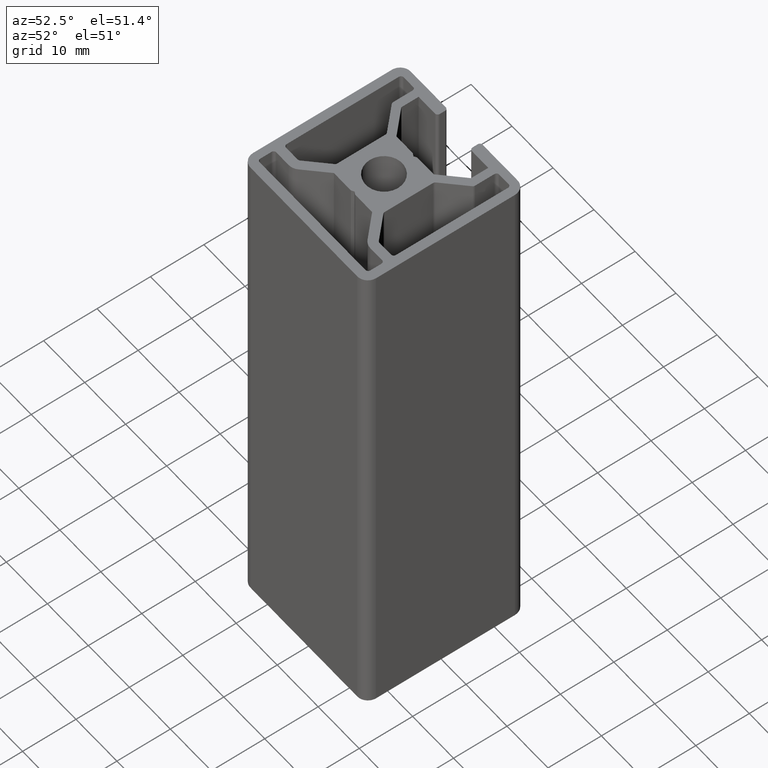
[diagram: clean part render]
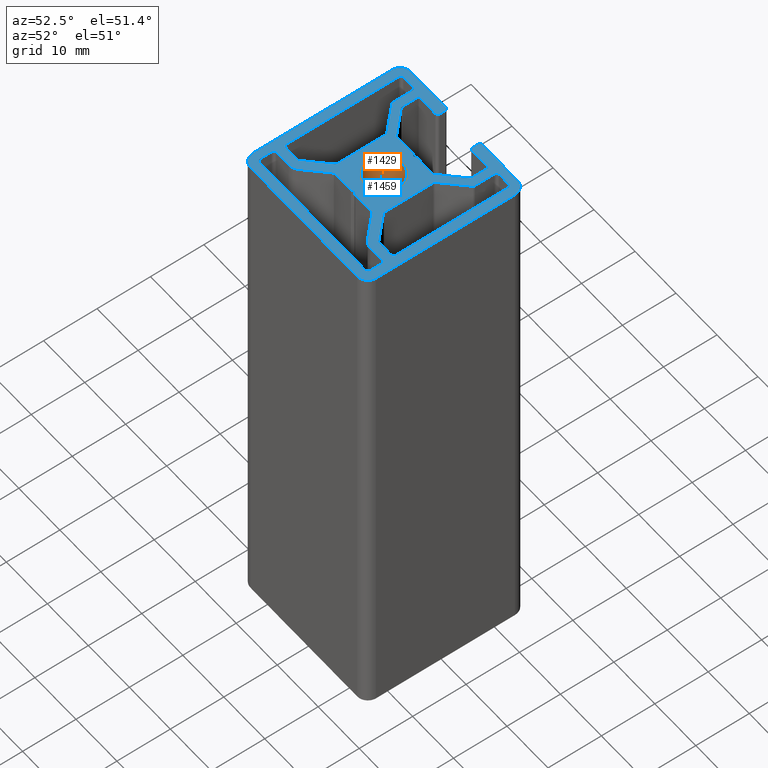
[diagram: same view with the hole feature highlighted: cylindrical wall and planar end face, labeled with their STEP entity ids]
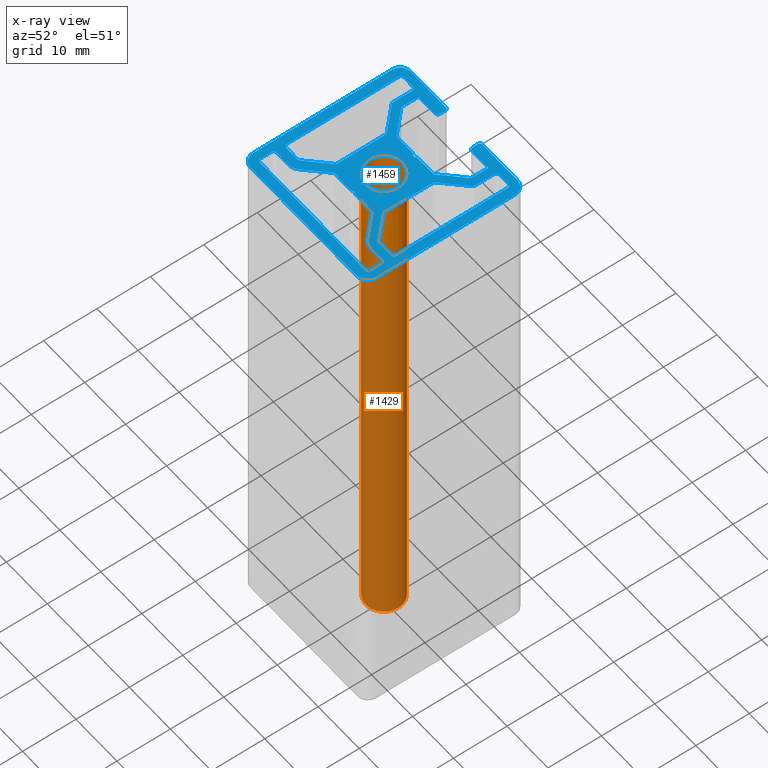
[diagram: x-ray of the same camera — body ghosted, the hole faces saturated]
A machine part, auxiliary view. The highlighted faces form one hole feature of diameter 6.8 mm: the cylindrical wall (entity #1429, orange) and its adjacent planar end face (entity #1459, blue) — they share a circular edge in the B-rep.
The next image is the same camera in x-ray (body ghosted, the hole faces saturated) — the bore reads through the body.
Wall:
#15=FACE_BOUND('',#218,.T.);
#44=CIRCLE('',#1525,3.39999999999997);
#45=CIRCLE('',#1526,3.39999999999997);
#92=CYLINDRICAL_SURFACE('',#1524,3.39999999999997);
#144=FACE_OUTER_BOUND('',#217,.T.);
#217=EDGE_LOOP('',(#1060));
#218=EDGE_LOOP('',(#1061));
#642=VERTEX_POINT('',#2223);
#643=VERTEX_POINT('',#2225);
#816=EDGE_CURVE('',#642,#642,#44,.T.);
#817=EDGE_CURVE('',#643,#643,#45,.T.);
#1060=ORIENTED_EDGE('',*,*,#816,.F.);
#1061=ORIENTED_EDGE('',*,*,#817,.F.);
#1429=ADVANCED_FACE('',(#144,#15),#92,.F.);
#1524=AXIS2_PLACEMENT_3D('',#2222,#1790,#1791);
#1525=AXIS2_PLACEMENT_3D('',#2224,#1792,#1793);
#1526=AXIS2_PLACEMENT_3D('',#2226,#1794,#1795);
#1790=DIRECTION('center_axis',(0.,0.,1.));
#1791=DIRECTION('ref_axis',(-1.,0.,0.));
#1792=DIRECTION('center_axis',(0.,0.,-1.));
#1793=DIRECTION('ref_axis',(-1.,0.,0.));
#1794=DIRECTION('center_axis',(0.,0.,1.));
#1795=DIRECTION('ref_axis',(-1.,0.,0.));
#2222=CARTESIAN_POINT('Origin',(0.,0.,0.));
#2223=CARTESIAN_POINT('',(3.39999999999997,-4.16379911710096E-16,100.));
#2224=CARTESIAN_POINT('Origin',(0.,0.,100.));
#2225=CARTESIAN_POINT('',(3.39999999999997,4.16379911710096E-16,0.));
#2226=CARTESIAN_POINT('Origin',(0.,0.,0.));
End face:
#16=FACE_BOUND('',#249,.T.);
#17=FACE_BOUND('',#250,.T.);
#18=FACE_BOUND('',#251,.T.);
#19=FACE_BOUND('',#252,.T.);
#24=CIRCLE('',#1473,0.500000002027375);
#26=CIRCLE('',#1477,0.500000002027375);
#28=CIRCLE('',#1481,0.500000002027375);
#30=CIRCLE('',#1485,0.500000002027375);
#32=CIRCLE('',#1489,2.20000000003406);
#34=CIRCLE('',#1498,2.20000000003406);
#36=CIRCLE('',#1505,0.500000002027375);
#38=CIRCLE('',#1509,0.500000002027375);
#40=CIRCLE('',#1512,0.500000002027375);
#42=CIRCLE('',#1516,0.500000002027375);
#44=CIRCLE('',#1525,3.39999999999997);
#46=CIRCLE('',#1529,0.500000002027375);
#48=CIRCLE('',#1533,0.500000002027375);
#50=CIRCLE('',#1537,0.500000002027375);
#52=CIRCLE('',#1541,0.500000002027375);
#54=CIRCLE('',#1545,0.500000002027375);
#56=CIRCLE('',#1549,0.500000002027375);
#58=CIRCLE('',#1553,0.500000002027375);
#60=CIRCLE('',#1556,0.500000002027375);
#62=CIRCLE('',#1560,0.500000002027375);
#64=CIRCLE('',#1564,0.500000002027375);
#66=CIRCLE('',#1568,0.500000002027375);
#68=CIRCLE('',#1572,0.500000002027375);
#70=CIRCLE('',#1576,0.500000002027375);
#72=CIRCLE('',#1580,0.500000002027375);
#74=CIRCLE('',#1585,2.00000000847673);
#75=CIRCLE('',#1586,2.00000000847673);
#76=CIRCLE('',#1587,2.00000000847673);
#77=CIRCLE('',#1588,2.00000000847673);
#174=FACE_OUTER_BOUND('',#248,.T.);
#248=EDGE_LOOP('',(#1178,#1179,#1180,#1181,#1182,#1183,#1184,#1185,#1186,
#1187,#1188,#1189,#1190,#1191,#1192,#1193,#1194,#1195,#1196,#1197,#1198,
#1199,#1200,#1201,#1202));
#249=EDGE_LOOP('',(#1203,#1204,#1205,#1206,#1207,#1208,#1209,#1210,#1211,
#1212,#1213,#1214,#1215,#1216));
#250=EDGE_LOOP('',(#1217,#1218,#1219,#1220,#1221,#1222,#1223,#1224,#1225,
#1226,#1227,#1228,#1229,#1230));
#251=EDGE_LOOP('',(#1231));
#252=EDGE_LOOP('',(#1232,#1233,#1234,#1235,#1236,#1237,#1238,#1239,#1240,
#1241,#1242,#1243,#1244,#1245,#1246,#1247,#1248));
#266=LINE('',#2024,#420);
#271=LINE('',#2038,#425);
#275=LINE('',#2050,#429);
#279=LINE('',#2062,#433);
#283=LINE('',#2074,#437);
#287=LINE('',#2086,#441);
#290=LINE('',#2092,#444);
#293=LINE('',#2098,#447);
#296=LINE('',#2104,#450);
#299=LINE('',#2110,#453);
#302=LINE('',#2116,#456);
#305=LINE('',#2126,#459);
#309=LINE('',#2134,#463);
#312=LINE('',#2140,#466);
#315=LINE('',#2146,#469);
#319=LINE('',#2158,#473);
#325=LINE('',#2179,#479);
#329=LINE('',#2191,#483);
#332=LINE('',#2197,#486);
#335=LINE('',#2203,#489);
#338=LINE('',#2209,#492);
#341=LINE('',#2215,#495);
#344=LINE('',#2220,#498);
#346=LINE('',#2230,#500);
#351=LINE('',#2244,#505);
#355=LINE('',#2256,#509);
#359=LINE('',#2268,#513);
#363=LINE('',#2280,#517);
#367=LINE('',#2292,#521);
#371=LINE('',#2304,#525);
#376=LINE('',#2322,#530);
#380=LINE('',#2334,#534);
#384=LINE('',#2346,#538);
#388=LINE('',#2358,#542);
#392=LINE('',#2370,#546);
#396=LINE('',#2382,#550);
#400=LINE('',#2393,#554);
#404=LINE('',#2400,#558);
#405=LINE('',#2405,#559);
#406=LINE('',#2409,#560);
#407=LINE('',#2413,#561);
#408=LINE('',#2416,#562);
#420=VECTOR('',#1606,2.82010101687025);
#425=VECTOR('',#1619,2.10000000000225);
#429=VECTOR('',#1631,25.7999999898457);
#433=VECTOR('',#1643,2.09999999999813);
#437=VECTOR('',#1655,3.0201010107733);
#441=VECTOR('',#1667,5.31126983721981);
#444=VECTOR('',#1672,4.14901390390303);
#447=VECTOR('',#1677,0.599999995678486);
#450=VECTOR('',#1682,0.599999995678467);
#453=VECTOR('',#1687,4.14901390390303);
#456=VECTOR('',#1692,5.31126983728681);
#459=VECTOR('',#1703,4.00759256491257);
#463=VECTOR('',#1709,5.61837659561423);
#466=VECTOR('',#1714,3.22720778980405);
#469=VECTOR('',#1719,3.99999997674257);
#473=VECTOR('',#1731,1.00000000405466);
#479=VECTOR('',#1751,1.00000000405474);
#483=VECTOR('',#1763,4.00000002406959);
#486=VECTOR('',#1768,3.22720777482017);
#489=VECTOR('',#1773,5.6183766168011);
#492=VECTOR('',#1778,4.00759256491257);
#495=VECTOR('',#1783,0.599999995678476);
#498=VECTOR('',#1788,0.599999995678566);
#500=VECTOR('',#1798,9.06446610489959);
#505=VECTOR('',#1811,5.52548339116652);
#509=VECTOR('',#1823,3.64142134376743);
#513=VECTOR('',#1835,2.29999999703651);
#517=VECTOR('',#1847,20.999999983312);
#521=VECTOR('',#1859,2.82010101687021);
#525=VECTOR('',#1871,5.20416303915687);
#530=VECTOR('',#1890,3.64142133254557);
#534=VECTOR('',#1902,2.29999999752305);
#538=VECTOR('',#1914,20.9999999833663);
#542=VECTOR('',#1926,2.82010101887318);
#546=VECTOR('',#1938,5.20416304730037);
#550=VECTOR('',#1950,9.06446610316388);
#554=VECTOR('',#1962,5.52548340138043);
#558=VECTOR('',#1968,8.50000000575679);
#559=VECTOR('',#1973,25.9999999741351);
#560=VECTOR('',#1976,25.9999999830465);
#561=VECTOR('',#1979,25.9999999739653);
#562=VECTOR('',#1982,8.49999997350765);
#574=VERTEX_POINT('',#2022);
#575=VERTEX_POINT('',#2023);
#578=VERTEX_POINT('',#2031);
#580=VERTEX_POINT('',#2037);
#582=VERTEX_POINT('',#2043);
#584=VERTEX_POINT('',#2049);
#586=VERTEX_POINT('',#2055);
#588=VERTEX_POINT('',#2061);
#590=VERTEX_POINT('',#2067);
#592=VERTEX_POINT('',#2073);
#594=VERTEX_POINT('',#2079);
#596=VERTEX_POINT('',#2085);
#598=VERTEX_POINT('',#2091);
#600=VERTEX_POINT('',#2097);
#602=VERTEX_POINT('',#2103);
#604=VERTEX_POINT('',#2109);
#606=VERTEX_POINT('',#2115);
#608=VERTEX_POINT('',#2124);
#609=VERTEX_POINT('',#2125);
#612=VERTEX_POINT('',#2133);
#614=VERTEX_POINT('',#2139);
#616=VERTEX_POINT('',#2145);
#618=VERTEX_POINT('',#2151);
#620=VERTEX_POINT('',#2157);
#622=VERTEX_POINT('',#2163);
#624=VERTEX_POINT('',#2169);
#625=VERTEX_POINT('',#2170);
#628=VERTEX_POINT('',#2178);
#630=VERTEX_POINT('',#2184);
#632=VERTEX_POINT('',#2190);
#634=VERTEX_POINT('',#2196);
#636=VERTEX_POINT('',#2202);
#638=VERTEX_POINT('',#2208);
#640=VERTEX_POINT('',#2214);
#642=VERTEX_POINT('',#2223);
#644=VERTEX_POINT('',#2228);
#645=VERTEX_POINT('',#2229);
#648=VERTEX_POINT('',#2237);
#650=VERTEX_POINT('',#2243);
#652=VERTEX_POINT('',#2249);
#654=VERTEX_POINT('',#2255);
#656=VERTEX_POINT('',#2261);
#658=VERTEX_POINT('',#2267);
#660=VERTEX_POINT('',#2273);
#662=VERTEX_POINT('',#2279);
#664=VERTEX_POINT('',#2285);
#666=VERTEX_POINT('',#2291);
#668=VERTEX_POINT('',#2297);
#670=VERTEX_POINT('',#2303);
#672=VERTEX_POINT('',#2312);
#673=VERTEX_POINT('',#2313);
#676=VERTEX_POINT('',#2321);
#678=VERTEX_POINT('',#2327);
#680=VERTEX_POINT('',#2333);
#682=VERTEX_POINT('',#2339);
#684=VERTEX_POINT('',#2345);
#686=VERTEX_POINT('',#2351);
#688=VERTEX_POINT('',#2357);
#690=VERTEX_POINT('',#2363);
#692=VERTEX_POINT('',#2369);
#694=VERTEX_POINT('',#2375);
#696=VERTEX_POINT('',#2381);
#698=VERTEX_POINT('',#2387);
#701=VERTEX_POINT('',#2398);
#702=VERTEX_POINT('',#2402);
#703=VERTEX_POINT('',#2404);
#704=VERTEX_POINT('',#2406);
#705=VERTEX_POINT('',#2408);
#706=VERTEX_POINT('',#2410);
#707=VERTEX_POINT('',#2412);
#708=VERTEX_POINT('',#2414);
#716=EDGE_CURVE('',#574,#575,#266,.T.);
#720=EDGE_CURVE('',#575,#578,#24,.T.);
#723=EDGE_CURVE('',#578,#580,#271,.T.);
#726=EDGE_CURVE('',#580,#582,#26,.T.);
#729=EDGE_CURVE('',#582,#584,#275,.T.);
#732=EDGE_CURVE('',#584,#586,#28,.T.);
#735=EDGE_CURVE('',#586,#588,#279,.T.);
#738=EDGE_CURVE('',#588,#590,#30,.T.);
#741=EDGE_CURVE('',#590,#592,#283,.T.);
#744=EDGE_CURVE('',#592,#594,#32,.T.);
#747=EDGE_CURVE('',#594,#596,#287,.T.);
#750=EDGE_CURVE('',#596,#598,#290,.T.);
#753=EDGE_CURVE('',#598,#600,#293,.T.);
#756=EDGE_CURVE('',#600,#602,#296,.T.);
#759=EDGE_CURVE('',#602,#604,#299,.T.);
#762=EDGE_CURVE('',#604,#606,#302,.T.);
#765=EDGE_CURVE('',#606,#574,#34,.T.);
#767=EDGE_CURVE('',#608,#609,#305,.T.);
#771=EDGE_CURVE('',#609,#612,#309,.T.);
#774=EDGE_CURVE('',#612,#614,#312,.T.);
#777=EDGE_CURVE('',#614,#616,#315,.T.);
#780=EDGE_CURVE('',#616,#618,#36,.T.);
#783=EDGE_CURVE('',#618,#620,#319,.T.);
#786=EDGE_CURVE('',#620,#622,#38,.T.);
#789=EDGE_CURVE('',#624,#625,#40,.T.);
#793=EDGE_CURVE('',#625,#628,#325,.T.);
#796=EDGE_CURVE('',#628,#630,#42,.T.);
#799=EDGE_CURVE('',#630,#632,#329,.T.);
#802=EDGE_CURVE('',#632,#634,#332,.T.);
#805=EDGE_CURVE('',#634,#636,#335,.T.);
#808=EDGE_CURVE('',#636,#638,#338,.T.);
#811=EDGE_CURVE('',#638,#640,#341,.T.);
#814=EDGE_CURVE('',#640,#608,#344,.T.);
#816=EDGE_CURVE('',#642,#642,#44,.T.);
#818=EDGE_CURVE('',#644,#645,#346,.T.);
#822=EDGE_CURVE('',#645,#648,#46,.T.);
#825=EDGE_CURVE('',#648,#650,#351,.T.);
#828=EDGE_CURVE('',#650,#652,#48,.T.);
#831=EDGE_CURVE('',#652,#654,#355,.T.);
#834=EDGE_CURVE('',#654,#656,#50,.T.);
#837=EDGE_CURVE('',#656,#658,#359,.T.);
#840=EDGE_CURVE('',#658,#660,#52,.T.);
#843=EDGE_CURVE('',#660,#662,#363,.T.);
#846=EDGE_CURVE('',#662,#664,#54,.T.);
#849=EDGE_CURVE('',#664,#666,#367,.T.);
#852=EDGE_CURVE('',#666,#668,#56,.T.);
#855=EDGE_CURVE('',#668,#670,#371,.T.);
#858=EDGE_CURVE('',#670,#644,#58,.T.);
#860=EDGE_CURVE('',#672,#673,#60,.T.);
#864=EDGE_CURVE('',#676,#672,#376,.T.);
#867=EDGE_CURVE('',#678,#676,#62,.T.);
#870=EDGE_CURVE('',#680,#678,#380,.T.);
#873=EDGE_CURVE('',#682,#680,#64,.T.);
#876=EDGE_CURVE('',#684,#682,#384,.T.);
#879=EDGE_CURVE('',#686,#684,#66,.T.);
#882=EDGE_CURVE('',#688,#686,#388,.T.);
#885=EDGE_CURVE('',#690,#688,#68,.T.);
#888=EDGE_CURVE('',#692,#690,#392,.T.);
#891=EDGE_CURVE('',#694,#692,#70,.T.);
#894=EDGE_CURVE('',#696,#694,#396,.T.);
#897=EDGE_CURVE('',#698,#696,#72,.T.);
#900=EDGE_CURVE('',#673,#698,#400,.T.);
#904=EDGE_CURVE('',#701,#622,#404,.T.);
#905=EDGE_CURVE('',#702,#701,#74,.T.);
#906=EDGE_CURVE('',#703,#702,#405,.T.);
#907=EDGE_CURVE('',#704,#703,#75,.T.);
#908=EDGE_CURVE('',#705,#704,#406,.T.);
#909=EDGE_CURVE('',#706,#705,#76,.T.);
#910=EDGE_CURVE('',#707,#706,#407,.T.);
#911=EDGE_CURVE('',#708,#707,#77,.T.);
#912=EDGE_CURVE('',#624,#708,#408,.T.);
#1178=ORIENTED_EDGE('',*,*,#789,.T.);
#1179=ORIENTED_EDGE('',*,*,#793,.T.);
#1180=ORIENTED_EDGE('',*,*,#796,.T.);
#1181=ORIENTED_EDGE('',*,*,#799,.T.);
#1182=ORIENTED_EDGE('',*,*,#802,.T.);
#1183=ORIENTED_EDGE('',*,*,#805,.T.);
#1184=ORIENTED_EDGE('',*,*,#808,.T.);
#1185=ORIENTED_EDGE('',*,*,#811,.T.);
#1186=ORIENTED_EDGE('',*,*,#814,.T.);
#1187=ORIENTED_EDGE('',*,*,#767,.T.);
#1188=ORIENTED_EDGE('',*,*,#771,.T.);
#1189=ORIENTED_EDGE('',*,*,#774,.T.);
#1190=ORIENTED_EDGE('',*,*,#777,.T.);
#1191=ORIENTED_EDGE('',*,*,#780,.T.);
#1192=ORIENTED_EDGE('',*,*,#783,.T.);
#1193=ORIENTED_EDGE('',*,*,#786,.T.);
#1194=ORIENTED_EDGE('',*,*,#904,.F.);
#1195=ORIENTED_EDGE('',*,*,#905,.F.);
#1196=ORIENTED_EDGE('',*,*,#906,.F.);
#1197=ORIENTED_EDGE('',*,*,#907,.F.);
#1198=ORIENTED_EDGE('',*,*,#908,.F.);
#1199=ORIENTED_EDGE('',*,*,#909,.F.);
#1200=ORIENTED_EDGE('',*,*,#910,.F.);
#1201=ORIENTED_EDGE('',*,*,#911,.F.);
#1202=ORIENTED_EDGE('',*,*,#912,.F.);
#1203=ORIENTED_EDGE('',*,*,#860,.T.);
#1204=ORIENTED_EDGE('',*,*,#900,.T.);
#1205=ORIENTED_EDGE('',*,*,#897,.T.);
#1206=ORIENTED_EDGE('',*,*,#894,.T.);
#1207=ORIENTED_EDGE('',*,*,#891,.T.);
#1208=ORIENTED_EDGE('',*,*,#888,.T.);
#1209=ORIENTED_EDGE('',*,*,#885,.T.);
#1210=ORIENTED_EDGE('',*,*,#882,.T.);
#1211=ORIENTED_EDGE('',*,*,#879,.T.);
#1212=ORIENTED_EDGE('',*,*,#876,.T.);
#1213=ORIENTED_EDGE('',*,*,#873,.T.);
#1214=ORIENTED_EDGE('',*,*,#870,.T.);
#1215=ORIENTED_EDGE('',*,*,#867,.T.);
#1216=ORIENTED_EDGE('',*,*,#864,.T.);
#1217=ORIENTED_EDGE('',*,*,#818,.T.);
#1218=ORIENTED_EDGE('',*,*,#822,.T.);
#1219=ORIENTED_EDGE('',*,*,#825,.T.);
#1220=ORIENTED_EDGE('',*,*,#828,.T.);
#1221=ORIENTED_EDGE('',*,*,#831,.T.);
#1222=ORIENTED_EDGE('',*,*,#834,.T.);
#1223=ORIENTED_EDGE('',*,*,#837,.T.);
#1224=ORIENTED_EDGE('',*,*,#840,.T.);
#1225=ORIENTED_EDGE('',*,*,#843,.T.);
#1226=ORIENTED_EDGE('',*,*,#846,.T.);
#1227=ORIENTED_EDGE('',*,*,#849,.T.);
#1228=ORIENTED_EDGE('',*,*,#852,.T.);
#1229=ORIENTED_EDGE('',*,*,#855,.T.);
#1230=ORIENTED_EDGE('',*,*,#858,.T.);
#1231=ORIENTED_EDGE('',*,*,#816,.T.);
#1232=ORIENTED_EDGE('',*,*,#716,.T.);
#1233=ORIENTED_EDGE('',*,*,#720,.T.);
#1234=ORIENTED_EDGE('',*,*,#723,.T.);
#1235=ORIENTED_EDGE('',*,*,#726,.T.);
#1236=ORIENTED_EDGE('',*,*,#729,.T.);
#1237=ORIENTED_EDGE('',*,*,#732,.T.);
#1238=ORIENTED_EDGE('',*,*,#735,.T.);
#1239=ORIENTED_EDGE('',*,*,#738,.T.);
#1240=ORIENTED_EDGE('',*,*,#741,.T.);
#1241=ORIENTED_EDGE('',*,*,#744,.T.);
#1242=ORIENTED_EDGE('',*,*,#747,.T.);
#1243=ORIENTED_EDGE('',*,*,#750,.T.);
#1244=ORIENTED_EDGE('',*,*,#753,.T.);
#1245=ORIENTED_EDGE('',*,*,#756,.T.);
#1246=ORIENTED_EDGE('',*,*,#759,.T.);
#1247=ORIENTED_EDGE('',*,*,#762,.T.);
#1248=ORIENTED_EDGE('',*,*,#765,.T.);
#1390=PLANE('',#1584);
#1459=ADVANCED_FACE('',(#174,#16,#17,#18,#19),#1390,.T.);
#1473=AXIS2_PLACEMENT_3D('',#2032,#1612,#1613);
#1477=AXIS2_PLACEMENT_3D('',#2044,#1624,#1625);
#1481=AXIS2_PLACEMENT_3D('',#2056,#1636,#1637);
#1485=AXIS2_PLACEMENT_3D('',#2068,#1648,#1649);
#1489=AXIS2_PLACEMENT_3D('',#2080,#1660,#1661);
#1498=AXIS2_PLACEMENT_3D('',#2121,#1697,#1698);
#1505=AXIS2_PLACEMENT_3D('',#2152,#1724,#1725);
#1509=AXIS2_PLACEMENT_3D('',#2164,#1736,#1737);
#1512=AXIS2_PLACEMENT_3D('',#2171,#1743,#1744);
#1516=AXIS2_PLACEMENT_3D('',#2185,#1756,#1757);
#1525=AXIS2_PLACEMENT_3D('',#2224,#1792,#1793);
#1529=AXIS2_PLACEMENT_3D('',#2238,#1804,#1805);
#1533=AXIS2_PLACEMENT_3D('',#2250,#1816,#1817);
#1537=AXIS2_PLACEMENT_3D('',#2262,#1828,#1829);
#1541=AXIS2_PLACEMENT_3D('',#2274,#1840,#1841);
#1545=AXIS2_PLACEMENT_3D('',#2286,#1852,#1853);
#1549=AXIS2_PLACEMENT_3D('',#2298,#1864,#1865);
#1553=AXIS2_PLACEMENT_3D('',#2309,#1876,#1877);
#1556=AXIS2_PLACEMENT_3D('',#2314,#1882,#1883);
#1560=AXIS2_PLACEMENT_3D('',#2328,#1895,#1896);
#1564=AXIS2_PLACEMENT_3D('',#2340,#1907,#1908);
#1568=AXIS2_PLACEMENT_3D('',#2352,#1919,#1920);
#1572=AXIS2_PLACEMENT_3D('',#2364,#1931,#1932);
#1576=AXIS2_PLACEMENT_3D('',#2376,#1943,#1944);
#1580=AXIS2_PLACEMENT_3D('',#2388,#1955,#1956);
#1584=AXIS2_PLACEMENT_3D('',#2401,#1969,#1970);
#1585=AXIS2_PLACEMENT_3D('',#2403,#1971,#1972);
#1586=AXIS2_PLACEMENT_3D('',#2407,#1974,#1975);
#1587=AXIS2_PLACEMENT_3D('',#2411,#1977,#1978);
#1588=AXIS2_PLACEMENT_3D('',#2415,#1980,#1981);
#1606=DIRECTION('',(1.,-1.73220082512223E-14,0.));
#1612=DIRECTION('center_axis',(0.,0.,-1.));
#1613=DIRECTION('ref_axis',(1.,-4.44089208049396E-15,0.));
#1619=DIRECTION('',(-3.17206578463991E-15,-1.,0.));
#1624=DIRECTION('center_axis',(0.,0.,-1.));
#1625=DIRECTION('ref_axis',(-1.7763568321976E-14,-1.,0.));
#1631=DIRECTION('',(-1.,1.78152066812293E-14,0.));
#1636=DIRECTION('center_axis',(0.,0.,-1.));
#1637=DIRECTION('ref_axis',(-1.,0.,0.));
#1643=DIRECTION('',(0.,1.,0.));
#1648=DIRECTION('center_axis',(0.,0.,-1.));
#1649=DIRECTION('ref_axis',(-1.50990330736795E-13,1.,0.));
#1655=DIRECTION('',(1.,1.50720601222461E-13,0.));
#1660=DIRECTION('center_axis',(0.,0.,1.));
#1661=DIRECTION('ref_axis',(-1.50889401982166E-13,1.,0.));
#1667=DIRECTION('',(0.707106781183206,0.707106781189889,0.));
#1672=DIRECTION('',(1.,-2.6758720272804E-16,0.));
#1677=DIRECTION('',(0.866025406237631,0.499999995750946,0.));
#1682=DIRECTION('',(0.866025406237656,-0.499999995750903,0.));
#1687=DIRECTION('',(1.,-1.76607553800506E-14,0.));
#1692=DIRECTION('',(0.707106781189888,-0.707106781183207,0.));
#1697=DIRECTION('center_axis',(0.,0.,1.));
#1698=DIRECTION('ref_axis',(0.707106781183207,0.707106781189889,0.));
#1703=DIRECTION('',(-1.,1.77299145122953E-14,0.));
#1709=DIRECTION('',(-0.707106781183627,0.707106781189468,0.));
#1714=DIRECTION('',(2.40813783262713E-15,1.,0.));
#1719=DIRECTION('',(1.,-1.72084569817461E-14,0.));
#1724=DIRECTION('center_axis',(0.,0.,1.));
#1725=DIRECTION('ref_axis',(1.7763568321976E-14,1.,0.));
#1731=DIRECTION('',(1.66533453018538E-15,1.,0.));
#1736=DIRECTION('center_axis',(0.,0.,1.));
#1737=DIRECTION('ref_axis',(-1.,4.44089208049469E-15,0.));
#1743=DIRECTION('center_axis',(0.,0.,1.));
#1744=DIRECTION('ref_axis',(0.,-1.,0.));
#1751=DIRECTION('',(-2.77555755030874E-15,-1.,0.));
#1756=DIRECTION('center_axis',(0.,0.,1.));
#1757=DIRECTION('ref_axis',(1.,0.,0.));
#1763=DIRECTION('',(1.,-1.7763568287112E-14,0.));
#1768=DIRECTION('',(-1.72009845986291E-15,-1.,0.));
#1773=DIRECTION('',(-0.707106781183207,-0.707106781189888,0.));
#1778=DIRECTION('',(-1.,1.77299145122953E-14,0.));
#1783=DIRECTION('',(-0.866025406237631,-0.499999995750946,0.));
#1788=DIRECTION('',(-0.866025406237657,0.499999995750901,0.));
#1792=DIRECTION('center_axis',(0.,0.,-1.));
#1793=DIRECTION('ref_axis',(-1.,0.,0.));
#1798=DIRECTION('',(2.08217353346667E-15,1.,0.));
#1804=DIRECTION('center_axis',(0.,0.,-1.));
#1805=DIRECTION('ref_axis',(0.707106781189888,-0.707106781183207,0.));
#1811=DIRECTION('',(0.707106781183207,0.707106781189888,0.));
#1816=DIRECTION('center_axis',(0.,0.,1.));
#1817=DIRECTION('ref_axis',(0.707106781189888,-0.707106781183207,0.));
#1823=DIRECTION('',(3.04887273351486E-15,1.,0.));
#1828=DIRECTION('center_axis',(0.,0.,-1.));
#1829=DIRECTION('ref_axis',(-1.77635683219759E-14,-1.,0.));
#1835=DIRECTION('',(1.,-1.64119925590835E-14,0.));
#1840=DIRECTION('center_axis',(0.,0.,-1.));
#1841=DIRECTION('ref_axis',(-1.,4.44089208049396E-15,0.));
#1847=DIRECTION('',(-2.43191710349243E-15,-1.,0.));
#1852=DIRECTION('center_axis',(0.,0.,-1.));
#1853=DIRECTION('ref_axis',(1.77635683219759E-14,1.,0.));
#1859=DIRECTION('',(-1.,1.81093722626418E-14,0.));
#1864=DIRECTION('center_axis',(0.,0.,-1.));
#1865=DIRECTION('ref_axis',(0.707106781183207,0.707106781189888,0.));
#1871=DIRECTION('',(-0.707106781189889,0.707106781183206,0.));
#1876=DIRECTION('center_axis',(0.,0.,-1.));
#1877=DIRECTION('ref_axis',(1.,-2.22044604024699E-15,0.));
#1882=DIRECTION('center_axis',(0.,0.,1.));
#1883=DIRECTION('ref_axis',(1.,-2.220446040247E-15,0.));
#1890=DIRECTION('',(-2.13421092003745E-15,-1.,0.));
#1895=DIRECTION('center_axis',(0.,0.,-1.));
#1896=DIRECTION('ref_axis',(1.,-4.44089208049398E-15,0.));
#1902=DIRECTION('',(1.,-9.65411326800689E-16,0.));
#1907=DIRECTION('center_axis',(0.,0.,-1.));
#1908=DIRECTION('ref_axis',(0.,1.,0.));
#1914=DIRECTION('',(1.9032394722935E-15,1.,0.));
#1919=DIRECTION('center_axis',(0.,0.,-1.));
#1920=DIRECTION('ref_axis',(-1.,2.220446040247E-15,0.));
#1926=DIRECTION('',(-1.,0.,0.));
#1931=DIRECTION('center_axis',(0.,0.,-1.));
#1932=DIRECTION('ref_axis',(0.,-1.,0.));
#1938=DIRECTION('',(-0.707106781182162,-0.707106781190934,0.));
#1943=DIRECTION('center_axis',(0.,0.,-1.));
#1944=DIRECTION('ref_axis',(0.707106781190933,-0.707106781182162,0.));
#1950=DIRECTION('',(-2.32713512608483E-15,-1.,0.));
#1955=DIRECTION('center_axis',(0.,0.,-1.));
#1956=DIRECTION('ref_axis',(1.,-2.22044604024699E-15,0.));
#1962=DIRECTION('',(0.707106781189889,-0.707106781183206,0.));
#1968=DIRECTION('',(1.,-1.51799940237017E-11,0.));
#1969=DIRECTION('center_axis',(0.,0.,1.));
#1970=DIRECTION('ref_axis',(1.,0.,0.));
#1971=DIRECTION('center_axis',(0.,0.,-1.));
#1972=DIRECTION('ref_axis',(0.,-1.,0.));
#1973=DIRECTION('',(0.,1.,0.));
#1974=DIRECTION('center_axis',(0.,0.,-1.));
#1975=DIRECTION('ref_axis',(1.,0.,0.));
#1976=DIRECTION('',(-1.,0.,0.));
#1977=DIRECTION('center_axis',(0.,0.,-1.));
#1978=DIRECTION('ref_axis',(0.,1.,0.));
#1979=DIRECTION('',(2.97539770897479E-11,-1.,0.));
#1980=DIRECTION('center_axis',(0.,0.,-1.));
#1981=DIRECTION('ref_axis',(-1.,3.84254848573491E-10,0.));
#1982=DIRECTION('',(1.,-1.51799940237017E-11,0.));
#2022=CARTESIAN_POINT('',(9.97989901359474,-10.1999999999942,100.));
#2023=CARTESIAN_POINT('',(12.800000030465,-10.1999999999943,100.));
#2024=CARTESIAN_POINT('',(4.98994950679728,-10.1999999999941,100.));
#2031=CARTESIAN_POINT('',(13.3000000324923,-10.7000000020216,100.));
#2032=CARTESIAN_POINT('Origin',(12.800000030465,-10.7000000020216,100.));
#2037=CARTESIAN_POINT('',(13.3000000324923,-12.8000000020239,100.));
#2038=CARTESIAN_POINT('',(13.3000000324924,-5.3500000008161,100.));
#2043=CARTESIAN_POINT('',(12.8000000303548,-13.3000000040512,100.));
#2044=CARTESIAN_POINT('Origin',(12.8000000303548,-12.8000000020239,100.));
#2049=CARTESIAN_POINT('',(-12.9999999594909,-13.3000000040508,100.));
#2050=CARTESIAN_POINT('',(6.40000001517726,-13.3000000040511,100.));
#2055=CARTESIAN_POINT('',(-13.4999999615183,-12.8000000020234,100.));
#2056=CARTESIAN_POINT('Origin',(-12.9999999594909,-12.8000000020234,100.));
#2061=CARTESIAN_POINT('',(-13.4999999615183,-10.7000000020253,100.));
#2062=CARTESIAN_POINT('',(-13.4999999615183,-6.40000000081697,100.));
#2067=CARTESIAN_POINT('',(-12.999999959491,-10.1999999999979,100.));
#2068=CARTESIAN_POINT('Origin',(-12.9999999594909,-10.7000000020253,100.));
#2073=CARTESIAN_POINT('',(-9.97989894871767,-10.1999999999975,100.));
#2074=CARTESIAN_POINT('',(-6.49999997974472,-10.1999999999969,100.));
#2079=CARTESIAN_POINT('',(-8.42426403009014,-9.55563491859633,100.));
#2080=CARTESIAN_POINT('Origin',(-9.979898948718,-7.99999999998318,100.));
#2085=CARTESIAN_POINT('',(-4.66862911149819,-5.79999999996889,100.));
#2086=CARTESIAN_POINT('',(-3.92928929284106,-5.06066018130477,100.));
#2091=CARTESIAN_POINT('',(-0.519615207595157,-5.79999999996889,100.));
#2092=CARTESIAN_POINT('',(-2.33431455574909,-5.79999999996889,100.));
#2097=CARTESIAN_POINT('',(3.24048802201327E-8,-5.50000000467908,100.));
#2098=CARTESIAN_POINT('',(0.930977324807726,-4.96250002039118,100.));
#2103=CARTESIAN_POINT('',(0.519615272404916,-5.79999999996885,100.));
#2104=CARTESIAN_POINT('',(-1.19078490430158,-4.81250000871467,100.));
#2109=CARTESIAN_POINT('',(4.66862917630795,-5.79999999996893,100.));
#2110=CARTESIAN_POINT('',(0.259807636202407,-5.79999999996885,100.));
#2115=CARTESIAN_POINT('',(8.42426409498277,-9.55563491860826,100.));
#2116=CARTESIAN_POINT('',(2.05147188213033,-3.18284270581604,100.));
#2121=CARTESIAN_POINT('Origin',(9.97989901359477,-7.99999999998155,100.));
#2124=CARTESIAN_POINT('',(-0.519615207594365,5.80000000218335,100.));
#2125=CARTESIAN_POINT('',(-4.52720777250694,5.80000000218342,100.));
#2126=CARTESIAN_POINT('',(-0.259807603797131,5.80000000218335,100.));
#2133=CARTESIAN_POINT('',(-8.49999996250914,9.77279219221845,100.));
#2134=CARTESIAN_POINT('',(-1.94540582894106,3.21819805859622,100.));
#2139=CARTESIAN_POINT('',(-8.49999996250913,12.9999999820225,100.));
#2140=CARTESIAN_POINT('',(-8.49999996250915,4.88639609630397,100.));
#2145=CARTESIAN_POINT('',(-4.49999998576656,12.9999999820224,100.));
#2146=CARTESIAN_POINT('',(-4.24999998125445,12.9999999820224,100.));
#2151=CARTESIAN_POINT('',(-3.99999998373919,13.4999999840498,100.));
#2152=CARTESIAN_POINT('Origin',(-4.49999998576656,13.4999999840498,100.));
#2157=CARTESIAN_POINT('',(-3.99999998373919,14.4999999881044,100.));
#2158=CARTESIAN_POINT('',(-3.9999999837392,6.74999999221963,100.));
#2163=CARTESIAN_POINT('',(-4.49999998576647,14.9999999901317,100.));
#2164=CARTESIAN_POINT('Origin',(-4.49999998576647,14.4999999881044,100.));
#2169=CARTESIAN_POINT('',(4.50000001823,14.9999999901317,100.));
#2170=CARTESIAN_POINT('',(4.00000001614789,14.4999999881044,100.));
#2171=CARTESIAN_POINT('Origin',(4.50000001823,14.4999999881044,100.));
#2178=CARTESIAN_POINT('',(4.00000001614788,13.4999999840496,100.));
#2179=CARTESIAN_POINT('',(4.00000001614787,7.24999999424691,100.));
#2184=CARTESIAN_POINT('',(4.50000001822999,12.9999999820223,100.));
#2185=CARTESIAN_POINT('Origin',(4.50000001823,13.4999999840496,100.));
#2190=CARTESIAN_POINT('',(8.50000004229958,12.9999999820222,100.));
#2191=CARTESIAN_POINT('',(2.25000000911511,12.9999999820223,100.));
#2196=CARTESIAN_POINT('',(8.50000004229958,9.77279220720203,100.));
#2197=CARTESIAN_POINT('',(8.50000004229957,6.49999999120582,100.));
#2202=CARTESIAN_POINT('',(4.52720783731836,5.80000000218326,100.));
#2203=CARTESIAN_POINT('',(3.93180198004162,5.2045941449009,100.));
#2208=CARTESIAN_POINT('',(0.519615272405787,5.80000000218334,100.));
#2209=CARTESIAN_POINT('',(2.26360391865923,5.8000000021833,100.));
#2214=CARTESIAN_POINT('',(3.24057574351E-8,5.50000000689353,100.));
#2215=CARTESIAN_POINT('',(-0.930977284611883,4.96250000839427,100.));
#2220=CARTESIAN_POINT('',(1.19078494511902,4.8125000247816,100.));
#2223=CARTESIAN_POINT('',(3.39999999999997,-4.16379911710096E-16,100.));
#2224=CARTESIAN_POINT('Origin',(0.,0.,100.));
#2228=CARTESIAN_POINT('',(5.80000003619439,-4.32010102457813,100.));
#2229=CARTESIAN_POINT('',(5.80000003619441,4.74436508032146,100.));
#2230=CARTESIAN_POINT('',(5.8000000361944,-2.16005051209434,100.));
#2237=CARTESIAN_POINT('',(5.94644664619327,5.09791847234663,100.));
#2238=CARTESIAN_POINT('Origin',(6.30000003822178,4.74436508032146,100.));
#2243=CARTESIAN_POINT('',(9.85355342140229,9.00502524759257,100.));
#2244=CARTESIAN_POINT('',(3.18535536666971,2.33682719279698,100.));
#2249=CARTESIAN_POINT('',(10.0000000314012,9.35857863961774,100.));
#2250=CARTESIAN_POINT('Origin',(9.50000002937379,9.35857863961774,100.));
#2255=CARTESIAN_POINT('',(10.0000000314012,12.9999999833852,100.));
#2256=CARTESIAN_POINT('',(10.0000000314011,4.67928932000359,100.));
#2261=CARTESIAN_POINT('',(10.5000000334285,13.4999999854125,100.));
#2262=CARTESIAN_POINT('Origin',(10.5000000334285,12.9999999833852,100.));
#2267=CARTESIAN_POINT('',(12.800000030465,13.4999999854125,100.));
#2268=CARTESIAN_POINT('',(5.25000001671438,13.4999999854126,100.));
#2273=CARTESIAN_POINT('',(13.3000000324924,12.9999999833304,100.));
#2274=CARTESIAN_POINT('Origin',(12.800000030465,12.9999999833304,100.));
#2279=CARTESIAN_POINT('',(13.3000000324924,-7.99999999998158,100.));
#2280=CARTESIAN_POINT('',(13.3000000324924,6.49999999185993,100.));
#2285=CARTESIAN_POINT('',(12.800000030465,-8.50000000200894,100.));
#2286=CARTESIAN_POINT('Origin',(12.800000030465,-7.99999999998158,100.));
#2291=CARTESIAN_POINT('',(9.97989901359477,-8.50000000200889,100.));
#2292=CARTESIAN_POINT('',(6.40000001523241,-8.50000000200883,100.));
#2297=CARTESIAN_POINT('',(9.6263456215859,-8.35355339199376,100.));
#2298=CARTESIAN_POINT('Origin',(9.97989901359477,-7.99999999998155,100.));
#2303=CARTESIAN_POINT('',(5.9464466461803,-4.67365441662293,100.));
#2304=CARTESIAN_POINT('',(5.13137086807088,-3.85857863852122,100.));
#2309=CARTESIAN_POINT('Origin',(6.30000003822176,-4.32010102457813,100.));
#2312=CARTESIAN_POINT('',(-9.99999996804072,9.35857865083959,100.));
#2313=CARTESIAN_POINT('',(-9.85355335803852,9.00502525881108,100.));
#2314=CARTESIAN_POINT('Origin',(-9.49999996601335,9.35857865083958,100.));
#2321=CARTESIAN_POINT('',(-9.99999996804071,12.9999999833852,100.));
#2322=CARTESIAN_POINT('',(-9.99999996804072,6.49999999188732,100.));
#2327=CARTESIAN_POINT('',(-10.4999999700681,13.4999999854125,100.));
#2328=CARTESIAN_POINT('Origin',(-10.4999999700681,12.9999999833852,100.));
#2333=CARTESIAN_POINT('',(-12.7999999675911,13.4999999854125,100.));
#2334=CARTESIAN_POINT('',(-6.39999998379556,13.4999999854125,100.));
#2339=CARTESIAN_POINT('',(-13.2999999696185,12.9999999833852,100.));
#2340=CARTESIAN_POINT('Origin',(-12.7999999675911,12.9999999833852,100.));
#2345=CARTESIAN_POINT('',(-13.2999999696185,-7.99999999998112,100.));
#2346=CARTESIAN_POINT('',(-13.2999999696185,-3.99999999979582,100.));
#2351=CARTESIAN_POINT('',(-12.7999999675912,-8.50000000200892,100.));
#2352=CARTESIAN_POINT('Origin',(-12.7999999675912,-7.99999999998112,100.));
#2357=CARTESIAN_POINT('',(-9.979898948718,-8.50000000200892,100.));
#2358=CARTESIAN_POINT('',(-4.989949474359,-8.50000000200892,100.));
#2363=CARTESIAN_POINT('',(-9.62634555669012,-8.35355339200667,100.));
#2364=CARTESIAN_POINT('Origin',(-9.979898948718,-7.99999999998318,100.));
#2369=CARTESIAN_POINT('',(-5.9464465755664,-4.67365441083731,100.));
#2370=CARTESIAN_POINT('',(-3.29142132888655,-2.01862916412452,100.));
#2375=CARTESIAN_POINT('',(-5.79999996556807,-4.32010101881266,100.));
#2376=CARTESIAN_POINT('Origin',(-6.29999996759544,-4.32010101881266,100.));
#2381=CARTESIAN_POINT('',(-5.79999996556805,4.74436508435122,100.));
#2382=CARTESIAN_POINT('',(-5.79999996556805,2.37218254237035,100.));
#2387=CARTESIAN_POINT('',(-5.94644657557025,5.09791847637973,100.));
#2388=CARTESIAN_POINT('Origin',(-6.29999996759542,4.74436508435122,100.));
#2393=CARTESIAN_POINT('',(-5.13890870390021,4.29038060471732,100.));
#2398=CARTESIAN_POINT('',(-12.9999999915233,14.9999999963232,100.));
#2400=CARTESIAN_POINT('',(6.49999999598268,14.9999999960272,100.));
#2401=CARTESIAN_POINT('Origin',(0.,3.89466237038505E-10,100.));
#2402=CARTESIAN_POINT('',(-15.,12.9999999870676,100.));
#2403=CARTESIAN_POINT('Origin',(-12.9999999915233,12.9999999878465,100.));
#2404=CARTESIAN_POINT('',(-15.,-12.9999999870676,100.));
#2405=CARTESIAN_POINT('',(-15.,6.49999999372852,100.));
#2406=CARTESIAN_POINT('',(-12.9999999915233,-14.9999999955443,100.));
#2407=CARTESIAN_POINT('Origin',(-12.9999999915233,-12.9999999870676,100.));
#2408=CARTESIAN_POINT('',(12.9999999915233,-14.9999999955443,100.));
#2409=CARTESIAN_POINT('',(-6.49999999576163,-14.9999999955443,100.));
#2410=CARTESIAN_POINT('',(15.,-12.9999999870676,100.));
#2411=CARTESIAN_POINT('Origin',(12.9999999915233,-12.9999999870676,100.));
#2412=CARTESIAN_POINT('',(14.9999999992264,12.9999999868977,100.));
#2413=CARTESIAN_POINT('',(14.9999999998066,-6.4999999931159,100.));
#2414=CARTESIAN_POINT('',(12.9999999917377,14.9999999959286,100.));
#2415=CARTESIAN_POINT('Origin',(12.9999999909641,12.9999999876662,100.));
#2416=CARTESIAN_POINT('',(6.49999999598268,14.9999999960272,100.));